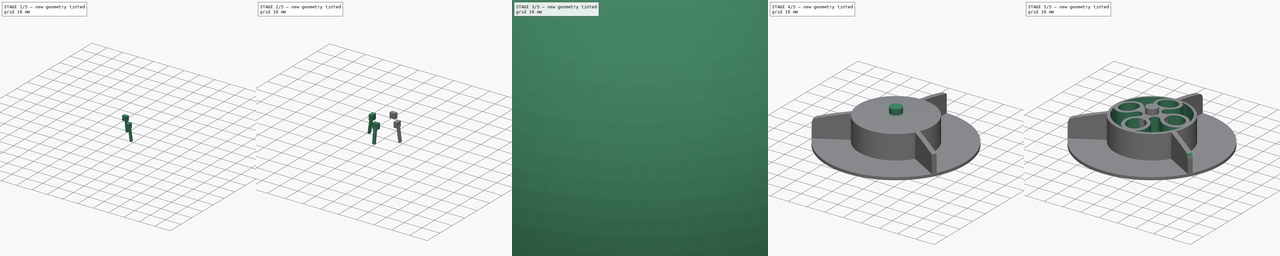
[diagram: build sequence overview — one tinted view per stage of 5, left to right]
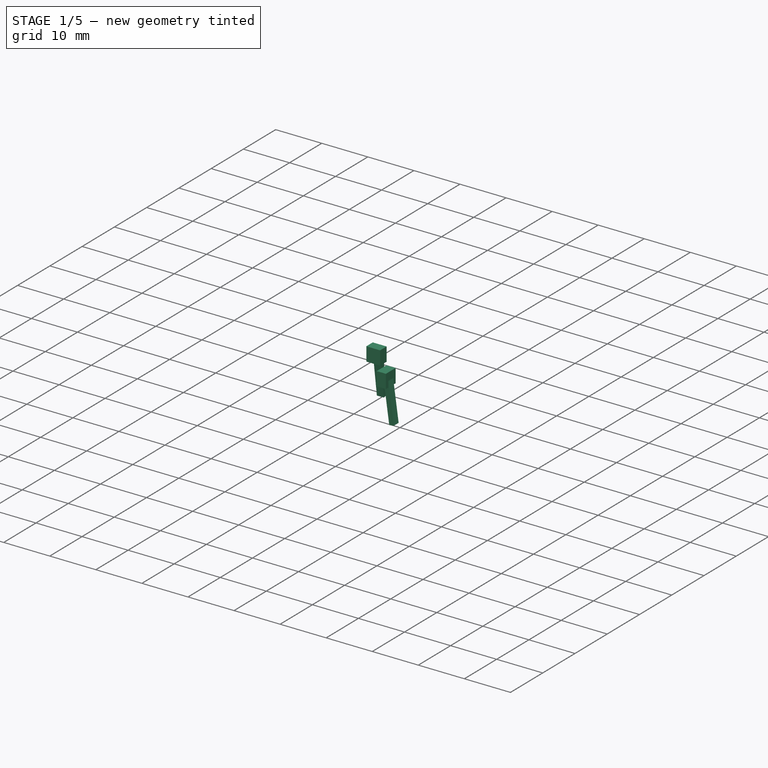
[diagram: stage 1 of 5 — iso view after this stage's code; geometry added in this stage tinted green]
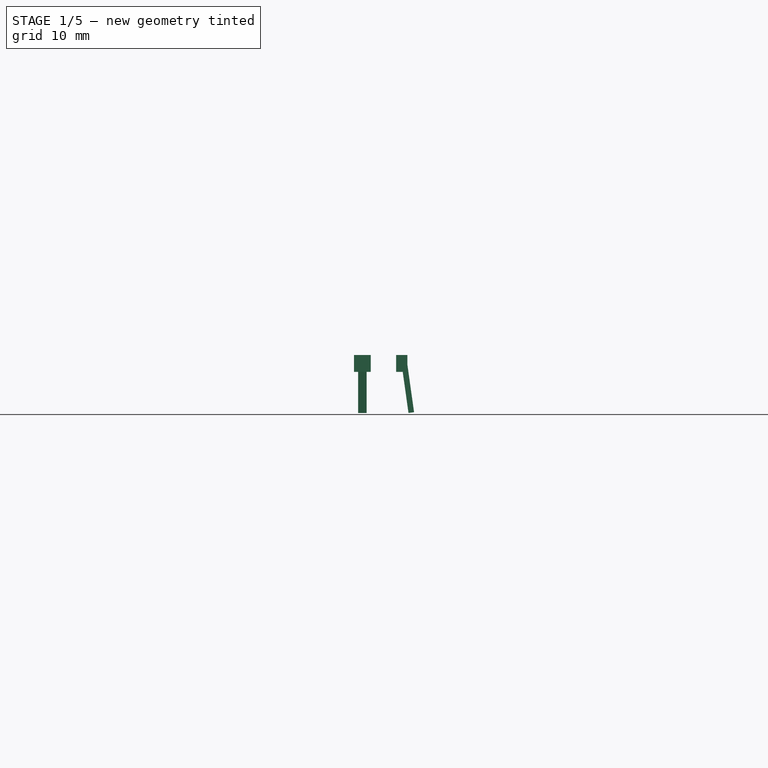
[diagram: stage 1 of 5 — front view after this stage's code; geometry added in this stage tinted green]
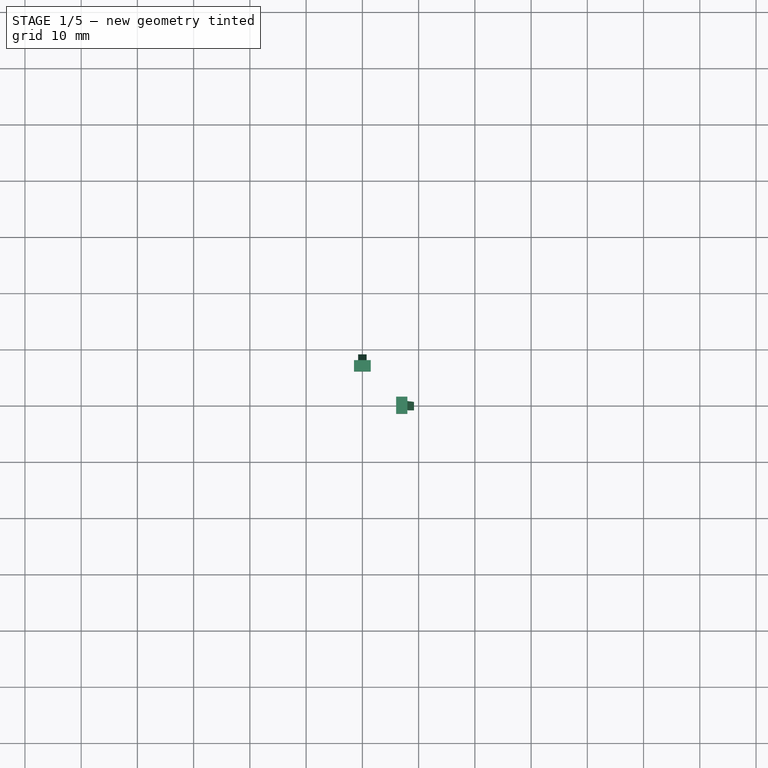
[diagram: stage 1 of 5 — top view after this stage's code; geometry added in this stage tinted green]
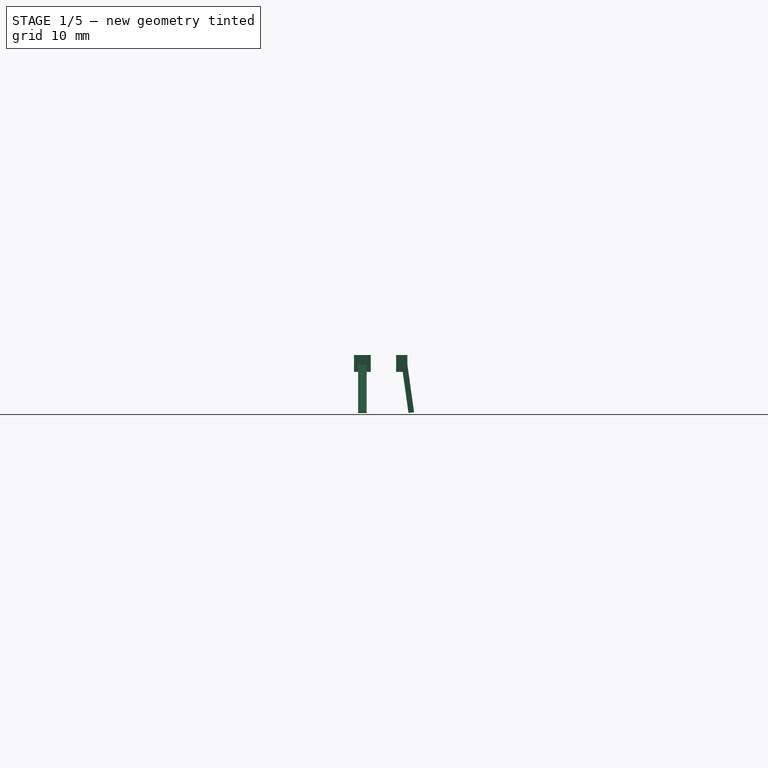
[diagram: stage 1 of 5 — right view after this stage's code; geometry added in this stage tinted green]
FCSTD DOCUMENT  (FreeCAD 0.14R2580 (Git))
Label: Disolver-Stirrer
License: CC-BY 3.0
LicenseURL: http://creativecommons.org/licenses/by/3.0/
objects: Part::Box×8, Sketcher::SketchObject×7, Part::MultiFuse×5, PartDesign::Pad×4, PartDesign::Pocket×3, PartDesign::Fillet×3, Part::Sphere×1, Part::MultiCommon×1
note: 39 computed .brp shape members not serialized (recipe doc carries the construction recipe); baked Part::Feature solids carry a one-line shape summary decoded from their .brp

FEATURE [Part::Box] Box001002  label="Clip004"
  Height = 10
  Length = 1.5
  Placement = pos=(-0.75,8.2,5.5) rot=(1,0,0;0.139626rad)
  Width = 1
FEATURE [Part::Box] Box001003
  Height = 3
  Length = 3
  Placement = pos=(-1.5,6,12.8) rot=(0,0,1;0rad)
  Width = 2
FEATURE [Part::Box] Box001004  label="Clip006"
  Height = 10
  Length = 1.5
  Placement = pos=(-0.75,8.2,5.5) rot=(1,0,0;0.139626rad)
  Width = 1
FEATURE [Part::Box] Box001005
  Height = 3
  Length = 3
  Placement = pos=(-1.5,6,12.8) rot=(0,0,1;0rad)
  Width = 2
FEATURE [Part::MultiFuse] Fusion003  label="Clip007"
  Placement = pos=(0,0,0) rot=(0,0,-1;1.5708rad)
  Shapes = -> [Box001005,Box001004]
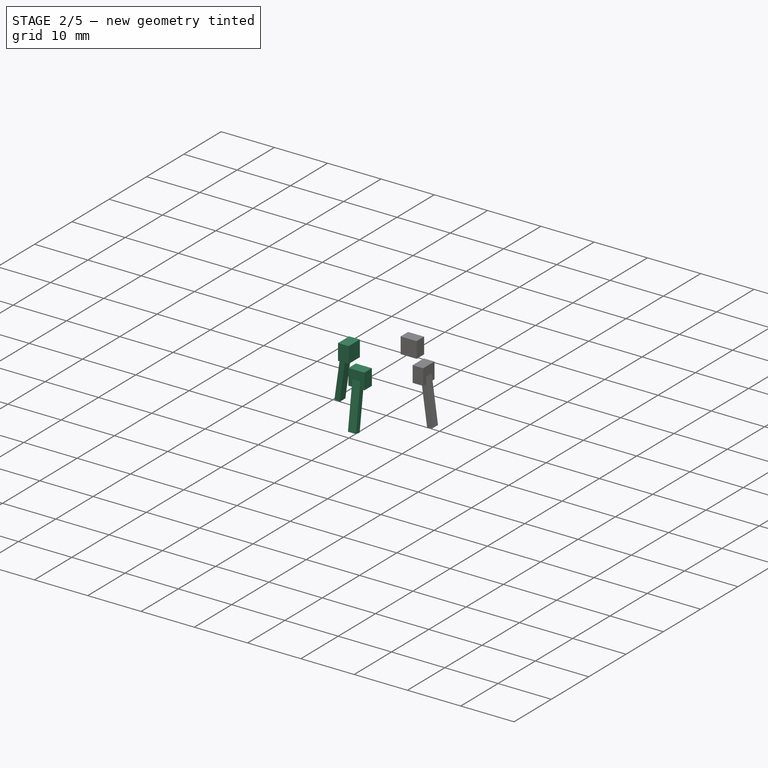
[diagram: stage 2 of 5 — iso view after this stage's code; geometry added in this stage tinted green]
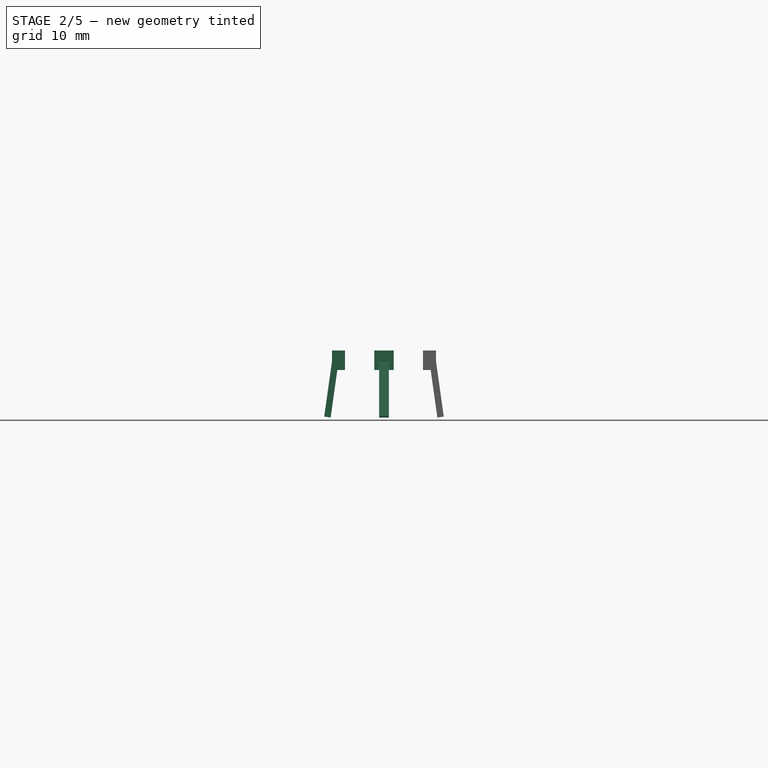
[diagram: stage 2 of 5 — front view after this stage's code; geometry added in this stage tinted green]
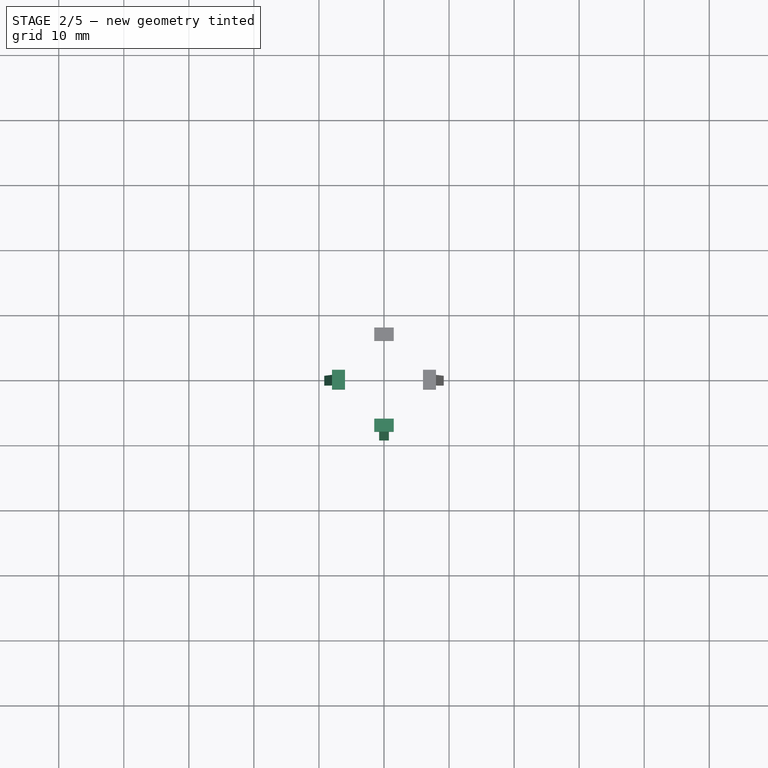
[diagram: stage 2 of 5 — top view after this stage's code; geometry added in this stage tinted green]
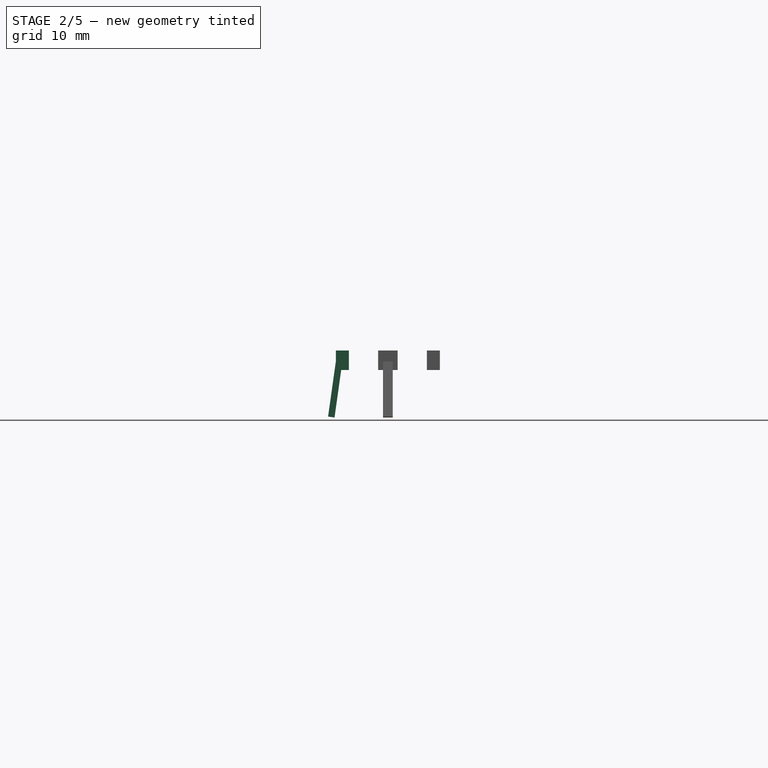
[diagram: stage 2 of 5 — right view after this stage's code; geometry added in this stage tinted green]
FEATURE [Part::Box] Box001
  Height = 3
  Length = 3
  Placement = pos=(-1.5,6,12.8) rot=(0,0,1;0rad)
  Width = 2
FEATURE [Part::Box] Box002  label="Clip002"
  Height = 10
  Length = 1.5
  Placement = pos=(-0.75,8.2,5.5) rot=(1,0,0;0.139626rad)
  Width = 1
FEATURE [Part::Box] Box001001
  Height = 3
  Length = 3
  Placement = pos=(-1.5,6,12.8) rot=(0,0,1;0rad)
  Width = 2
FEATURE [Part::MultiFuse] Fusion001  label="Clip003"
  Placement = pos=(0,0,0) rot=(0,0,1;1.5708rad)
  Shapes = -> [Box001001,Box002]
FEATURE [Part::MultiFuse] Fusion002  label="Clip005"
  Placement = pos=(0,0,0) rot=(0,0,1;3.14159rad)
  Shapes = -> [Box001003,Box001002]
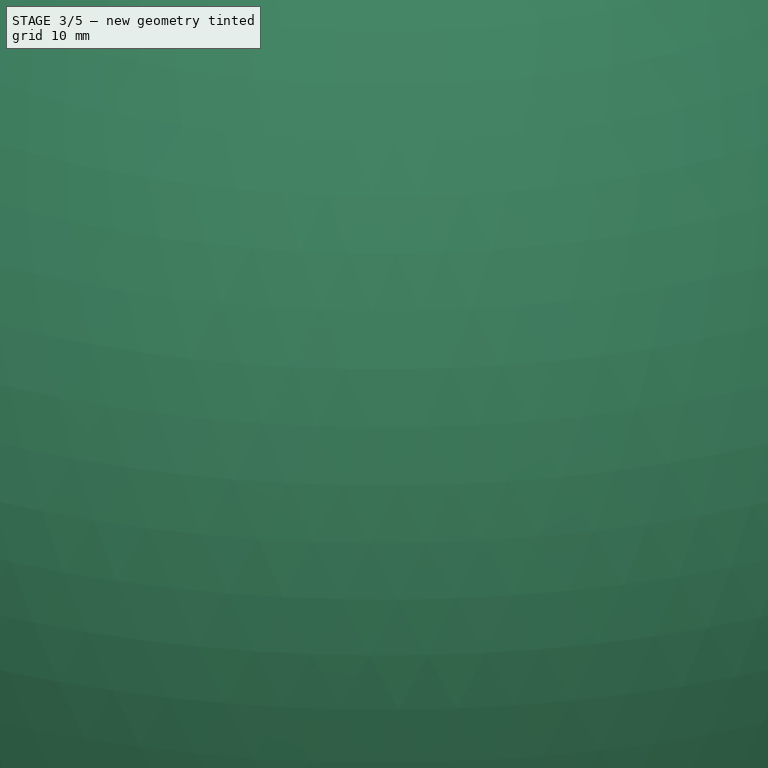
[diagram: stage 3 of 5 — iso view after this stage's code; geometry added in this stage tinted green]
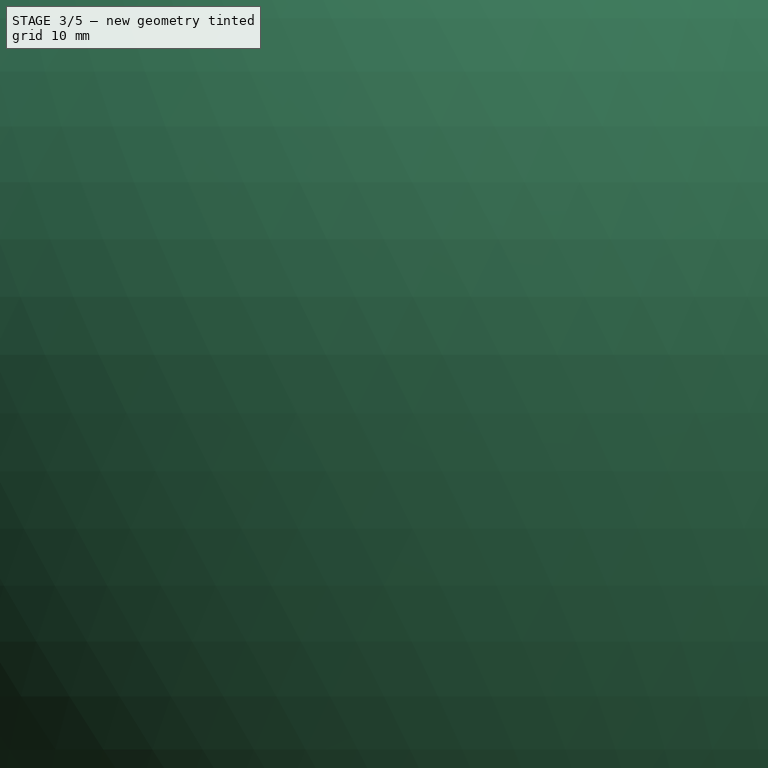
[diagram: stage 3 of 5 — front view after this stage's code; geometry added in this stage tinted green]
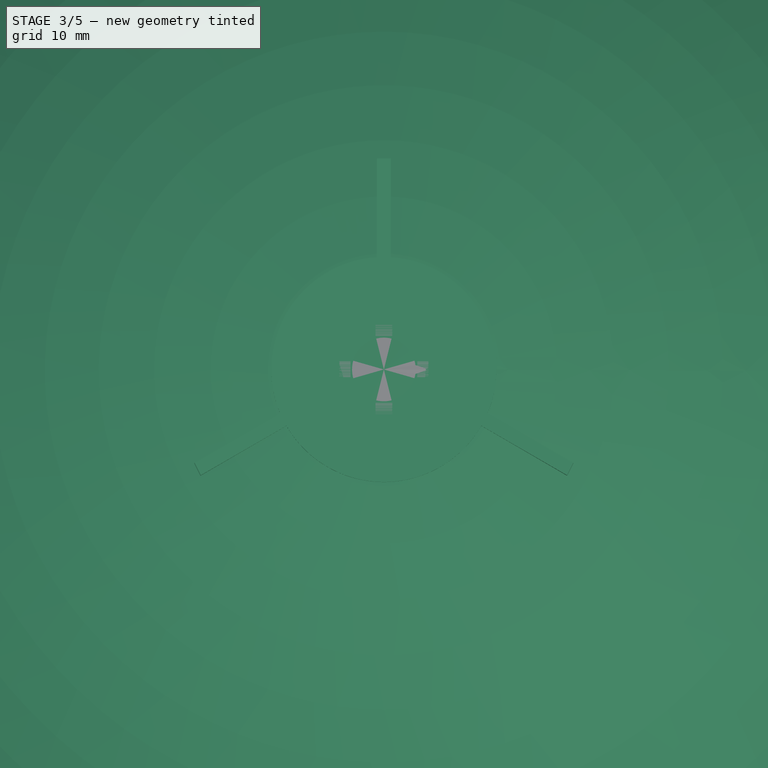
[diagram: stage 3 of 5 — top view after this stage's code; geometry added in this stage tinted green]
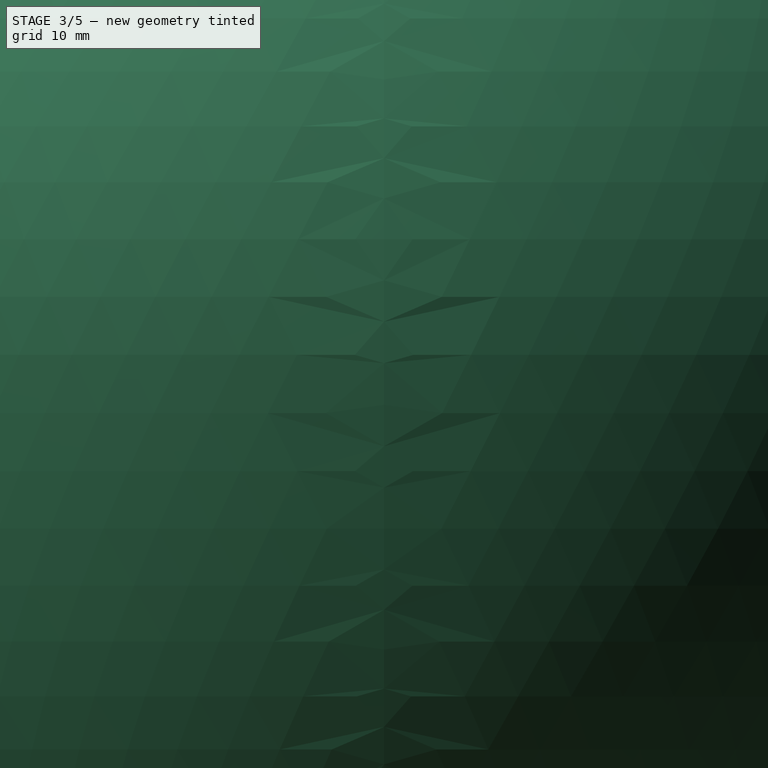
[diagram: stage 3 of 5 — right view after this stage's code; geometry added in this stage tinted green]
FEATURE [Sketcher::SketchObject] Sketch  label="Base"
  sketch-geometry (1):
    g0: Circle CenterX=0 CenterY=0 CenterZ=0 NormalX=0 NormalY=0 NormalZ=1 Radius=38
  constraints (2):
    c: Coincident(g0,g-1)
    c: Radius(g0) = 38
FEATURE [PartDesign::Pad] Pad  label="BasePlate"
  Length = 1.5
  Length2 = 100
  Sketch = -> Sketch
  Type = 0
FEATURE [Sketcher::SketchObject] Sketch001
  ExternalGeometry = -> [Pad]
  Placement = pos=(0,0,1.5) rot=(0,0,1;0rad)
  Support = -> Pad [Face3]
  sketch-geometry (12):
    g0: LineSegment StartX=-1.25 StartY=20.2114 StartZ=0 EndX=-1.25 EndY=37.9794 EndZ=0
    g1: LineSegment StartX=-1.25 StartY=37.9794 StartZ=0 EndX=1.25 EndY=37.9794 EndZ=0
    g2: LineSegment StartX=1.25 StartY=37.9794 StartZ=0 EndX=1.25 EndY=20.2114 EndZ=0
    g3: LineSegment StartX=18.651 StartY=-7.8869 StartZ=0 EndX=34.0856 EndY=-16.7981 EndZ=0
    g4: LineSegment StartX=34.0856 StartY=-16.7981 StartZ=0 EndX=32.9716 EndY=-19.0362 EndZ=0
    g5: LineSegment StartX=32.9716 StartY=-19.0362 StartZ=0 EndX=17.537 EndY=-10.125 EndZ=0
    g6: LineSegment StartX=-17.537 StartY=-10.125 StartZ=0 EndX=-32.9716 EndY=-19.0362 EndZ=0
    g7: LineSegment StartX=-32.9716 StartY=-19.0362 StartZ=0 EndX=-34.0856 EndY=-16.7981 EndZ=0
    g8: LineSegment StartX=-34.0856 StartY=-16.7981 StartZ=0 EndX=-18.651 EndY=-7.8869 EndZ=0
    g9: ArcOfCircle CenterX=0 CenterY=0 CenterZ=0 NormalX=0 NormalY=0 NormalZ=1 Radius=20.25 StartAngle=5.88312 EndAngle=7.79221
    g10: ArcOfCircle CenterX=0 CenterY=0 CenterZ=0 NormalX=0 NormalY=0 NormalZ=1 Radius=20.25 StartAngle=3.66519 EndAngle=5.75959
    g11: ArcOfCircle CenterX=0 CenterY=0 CenterZ=0 NormalX=0 NormalY=0 NormalZ=1 Radius=20.25 StartAngle=1.63256 EndAngle=3.54166
  constraints (36):
    c: Vertical(g0)
    c: Coincident(g0,g1)
    c: Horizontal(g1)
    c: Coincident(g1,g2)
    c: Vertical(g2)
    c: Coincident(g3,g4)
    c: Coincident(g4,g5)
    c: Coincident(g6,g7)
    c: Coincident(g7,g8)
    c: Coincident(g9,g-1)
    c: Coincident(g10,g-1)
    c: Coincident(g11,g-1)
    c: Coincident(g10,g6)
    c: Coincident(g10,g5)
    c: Coincident(g3,g9)
    c: Coincident(g9,g2)
    c: Coincident(g0,g11)
    c: Coincident(g8,g11)
    c: Equal(g10,g9)
    c: Equal(g9,g11)
    c: Equal(g1,g4)
    c: Equal(g4,g7)
    c: Distance(g1) = 2.5
    c: PointOnObject(g1,g-3)
    c: Symmetric(g2,g0,g-2)
    c: Parallel(g3,g5)
    c: Parallel(g6,g8)
    c: Equal(g3,g5)
    c: Equal(g6,g8)
    c: PointOnObject(g3,g-3)
    c: PointOnObject(g7,g-3)
    c: Perpendicular(g5,g10)
    c: Perpendicular(g6,g10)
    c: Radius(g9) = 20.25
    c: Angle(g3,g-2) = 2.0944
    c: Angle(g-2,g8) = 2.0944
FEATURE [PartDesign::Pad] Pad001  label="Paddles"
  Length = 14.3
  Length2 = 100
  Sketch = -> Sketch001
  Type = 0
FEATURE [Part::Sphere] Sphere
  Angle1 = -90
  Angle2 = 90
  Angle3 = 360
  Placement = pos=(0,0,-134) rot=(0,0,1;0rad)
  Radius = 150
FEATURE [Part::Box] Box  label="Clip"
  Height = 10
  Length = 1.5
  Placement = pos=(-0.75,8.2,5.5) rot=(1,0,0;0.139626rad)
  Width = 1
FEATURE [Part::MultiFuse] Fusion  label="Clip001"
  Shapes = -> [Box001,Box]
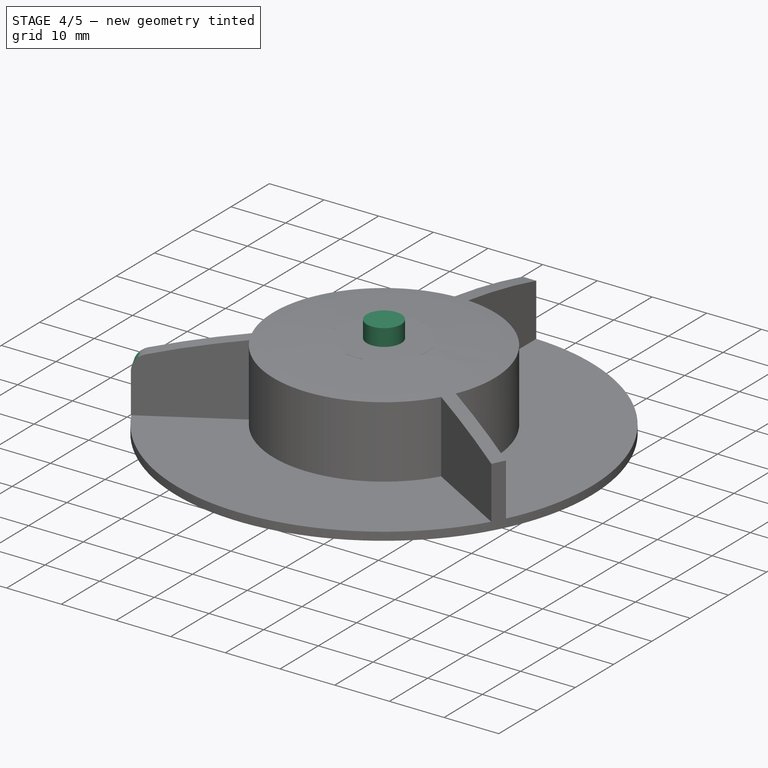
[diagram: stage 4 of 5 — iso view after this stage's code; geometry added in this stage tinted green]
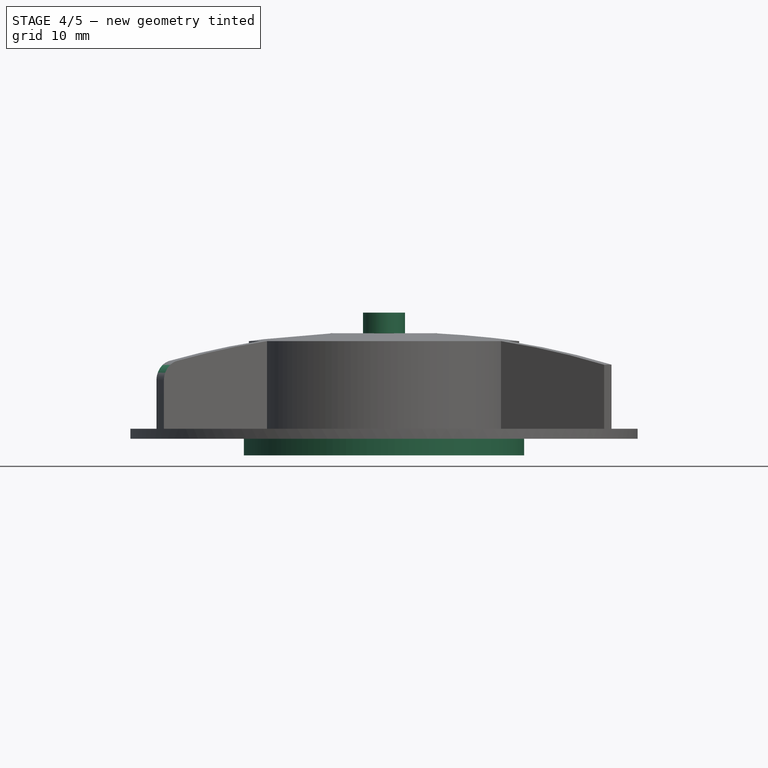
[diagram: stage 4 of 5 — front view after this stage's code; geometry added in this stage tinted green]
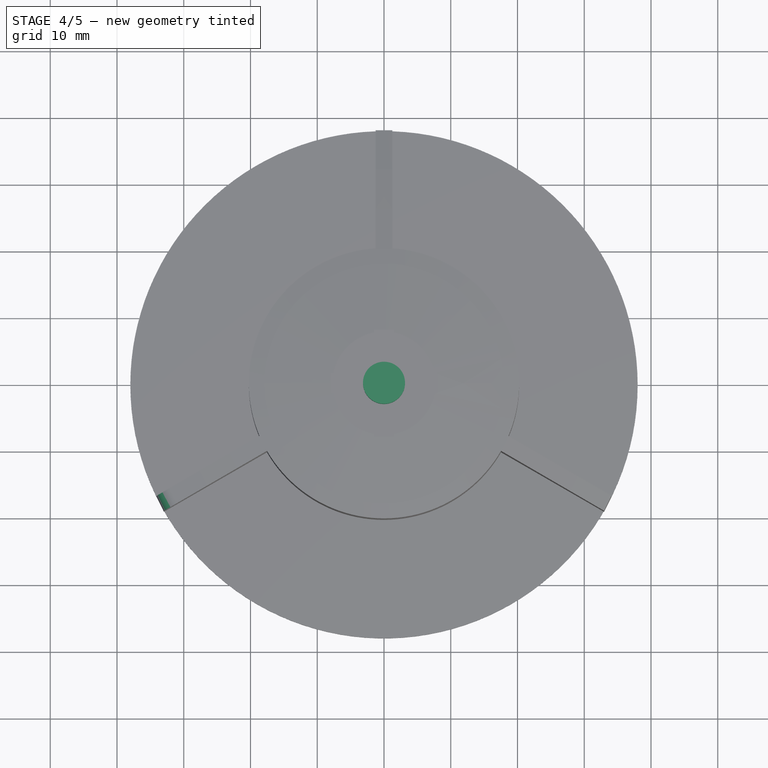
[diagram: stage 4 of 5 — top view after this stage's code; geometry added in this stage tinted green]
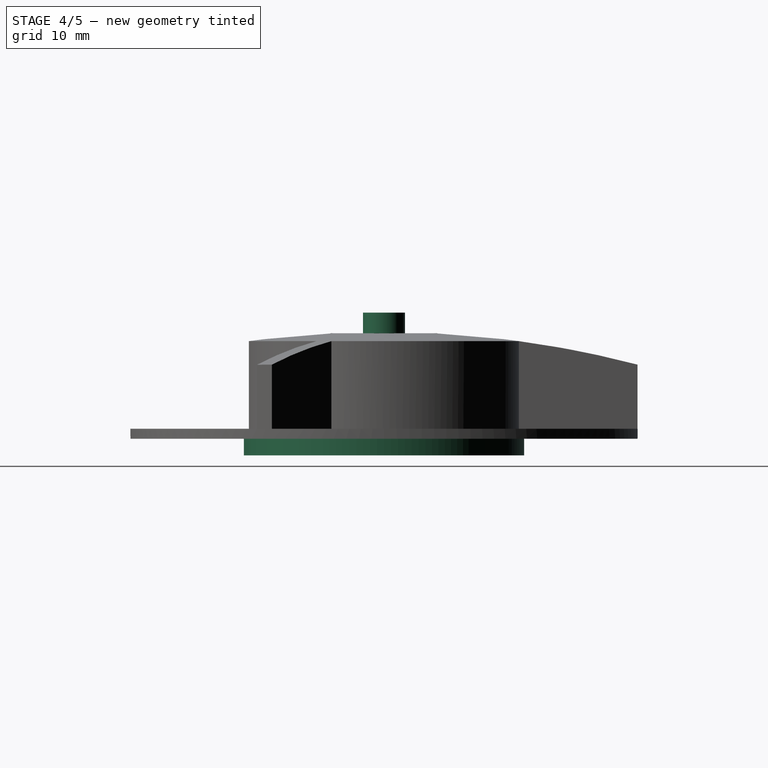
[diagram: stage 4 of 5 — right view after this stage's code; geometry added in this stage tinted green]
FEATURE [Part::MultiCommon] Common  label="CurveTop"
  Shapes = -> [Sphere,Pad001]
FEATURE [Sketcher::SketchObject] Sketch002
  Placement = pos=(0,0,15.8) rot=(0,0,1;0rad)
  Support = -> Common [Face24]
  sketch-geometry (1):
    g0: Circle CenterX=0 CenterY=0 CenterZ=0 NormalX=0 NormalY=0 NormalZ=1 Radius=3.15
  constraints (2):
    c: Coincident(g0,g-1)
    c: Radius(g0) = 3.15
FEATURE [PartDesign::Pad] Pad002  label="TopNub"
  Length = 3.1
  Length2 = 100
  Sketch = -> Sketch002
  Type = 0
FEATURE [Sketcher::SketchObject] Sketch003
  Placement = pos=(0,0,0) rot=(1,0,0;3.14159rad)
  Support = -> Pad002 [Face1]
  sketch-geometry (1):
    g0: Circle CenterX=0 CenterY=0 CenterZ=0 NormalX=0 NormalY=0 NormalZ=1 Radius=21
  constraints (2):
    c: Coincident(g0,g-1)
    c: Radius(g0) = 21
FEATURE [PartDesign::Pad] Pad003  label="BottomPlate"
  Length = 2.49
  Length2 = 100
  Sketch = -> Sketch003
  Type = 0
FEATURE [Sketcher::SketchObject] Sketch004
  Placement = pos=(0,0,-2.49) rot=(1,0,0;3.14159rad)
  Support = -> Pad003 [Face26]
  sketch-geometry (1):
    g0: Circle CenterX=0 CenterY=0 CenterZ=0 NormalX=0 NormalY=0 NormalZ=1 Radius=4
  constraints (2):
    c: Coincident(g0,g-1)
    c: Radius(g0) = 4
FEATURE [PartDesign::Pocket] Pocket  label="BottomHole"
  Length = 8.75
  Sketch = -> Sketch004
  Type = 0
FEATURE [PartDesign::Fillet] Fillet
  Base = -> Pocket [Edge46]
  Radius = 3
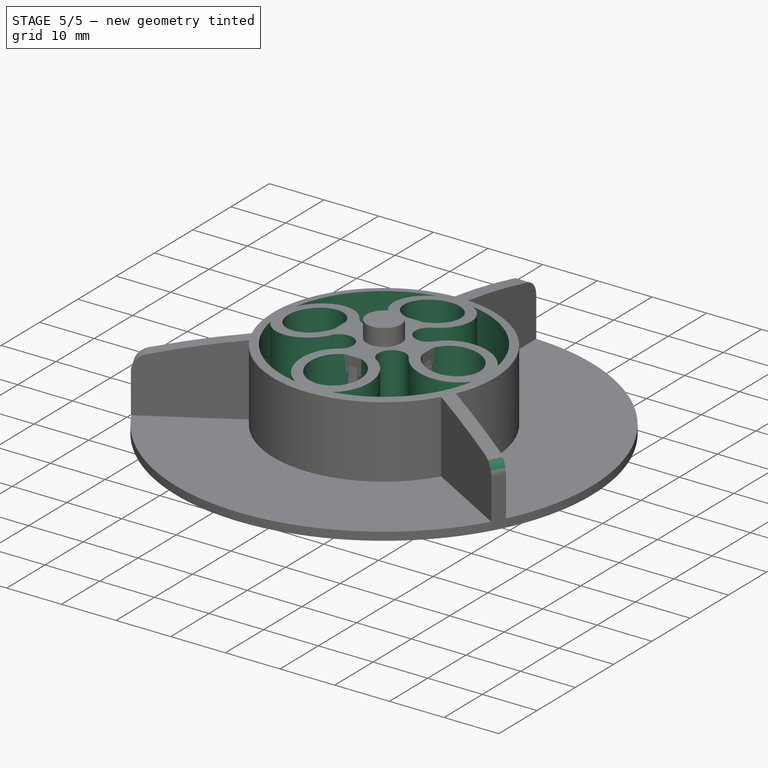
[diagram: stage 5 of 5 — iso view after this stage's code; geometry added in this stage tinted green]
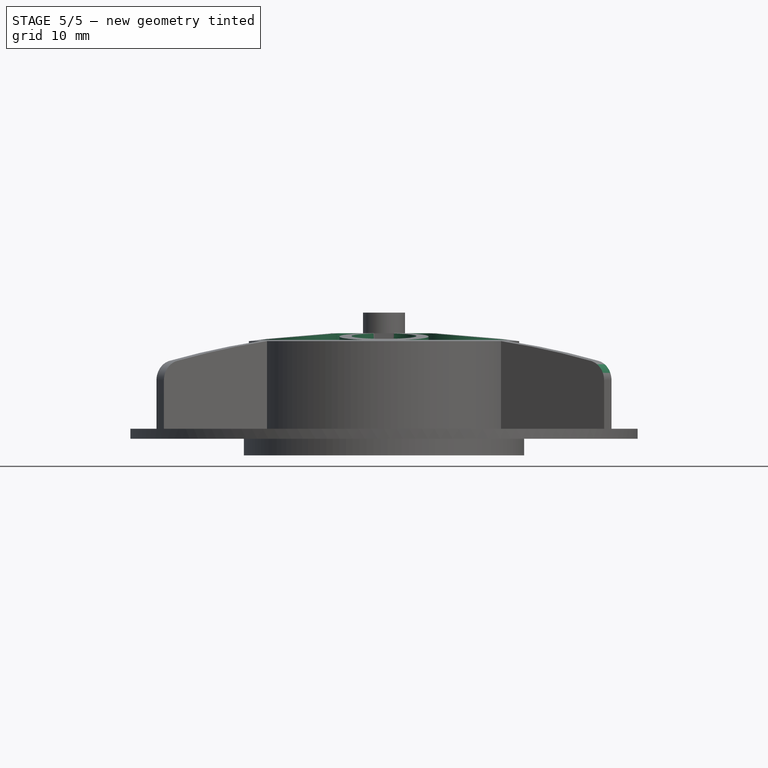
[diagram: stage 5 of 5 — front view after this stage's code; geometry added in this stage tinted green]
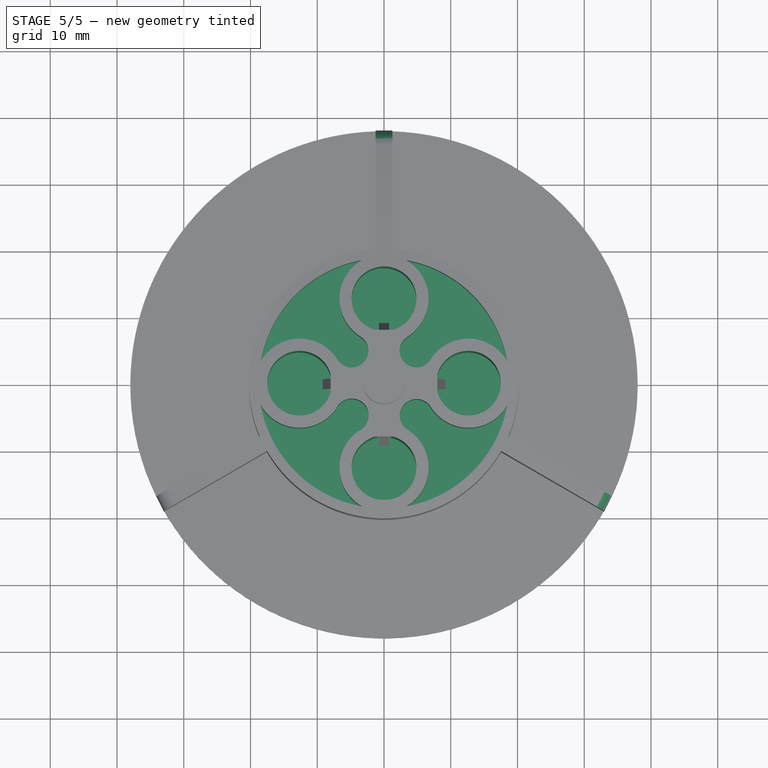
[diagram: stage 5 of 5 — top view after this stage's code; geometry added in this stage tinted green]
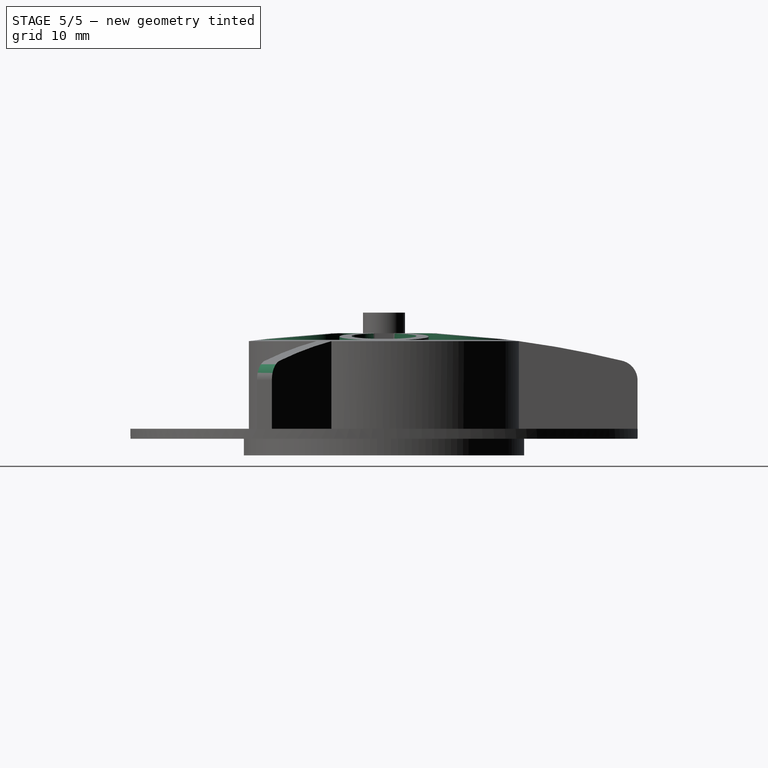
[diagram: stage 5 of 5 — right view after this stage's code; geometry added in this stage tinted green]
FEATURE [PartDesign::Fillet] Fillet001
  Base = -> Fillet [Edge18]
  Radius = 3
FEATURE [PartDesign::Fillet] Fillet002
  Base = -> Fillet001 [Edge14]
  Radius = 3
FEATURE [Sketcher::SketchObject] Sketch005
  Placement = pos=(0,0,15.8) rot=(0,0,1;0rad)
  Support = -> Fillet002 [Face10]
  sketch-geometry (16):
    g0: ArcOfCircle CenterX=0 CenterY=12.65 CenterZ=0 NormalX=0 NormalY=0 NormalZ=1 Radius=4.85 StartAngle=4.92006 EndAngle=10.7879
    g1: LineSegment StartX=-1 StartY=7.90421 StartZ=0 EndX=-1 EndY=6.40421 EndZ=0
    g2: LineSegment StartX=1 StartY=7.90421 StartZ=0 EndX=1 EndY=6.40421 EndZ=0
    g3: LineSegment StartX=-1 StartY=6.40421 StartZ=0 EndX=1 EndY=6.40421 EndZ=0
    g4: ArcOfCircle CenterX=0 CenterY=-12.65 CenterZ=0 NormalX=0 NormalY=0 NormalZ=1 Radius=4.85 StartAngle=1.77847 EndAngle=7.64631
    g5: LineSegment StartX=1 StartY=-7.90421 StartZ=0 EndX=1 EndY=-6.40421 EndZ=0
    g6: LineSegment StartX=1 StartY=-6.40421 StartZ=0 EndX=-1 EndY=-6.40421 EndZ=0
    g7: LineSegment StartX=-1 StartY=-6.40421 StartZ=0 EndX=-1 EndY=-7.90421 EndZ=0
    g8: ArcOfCircle CenterX=12.65 CenterY=0 CenterZ=0 NormalX=0 NormalY=0 NormalZ=1 Radius=4.85 StartAngle=3.34927 EndAngle=9.2171
    g9: LineSegment StartX=7.90421 StartY=1 StartZ=0 EndX=6.40421 EndY=1 EndZ=0
    g10: LineSegment StartX=6.40421 StartY=1 StartZ=0 EndX=6.40421 EndY=-1 EndZ=0
    g11: LineSegment StartX=6.40421 StartY=-1 StartZ=0 EndX=7.90421 EndY=-1 EndZ=0
    g12: ArcOfCircle CenterX=-12.65 CenterY=0 CenterZ=0 NormalX=0 NormalY=0 NormalZ=1 Radius=4.85 StartAngle=0.207675 EndAngle=6.07551
    g13: LineSegment StartX=-7.90421 StartY=1 StartZ=0 EndX=-6.40421 EndY=1 EndZ=0
    g14: LineSegment StartX=-6.40421 StartY=1 StartZ=0 EndX=-6.40421 EndY=-1 EndZ=0
    g15: LineSegment StartX=-6.40421 StartY=-1 StartZ=0 EndX=-7.90421 EndY=-1 EndZ=0
  constraints (52):
    c: PointOnObject(g0,g-2)
    c: Coincident(g1,g0)
    c: Vertical(g1)
    c: Coincident(g2,g0)
    c: Vertical(g2)
    c: Coincident(g3,g1)
    c: Horizontal(g3)
    c: Coincident(g2,g3)
    c: Radius(g0) = 4.85
    c: Symmetric(g2,g1,g-2)
    c: Distance(g3) = 2
    c: Distance(g2) = 1.5
    c: PointOnObject(g4,g-2)
    c: Coincident(g5,g6)
    c: Coincident(g6,g7)
    c: Coincident(g4,g7)
    c: Coincident(g4,g5)
    c: Vertical(g5)
    c: Vertical(g7)
    c: Horizontal(g6)
    c: Symmetric(g5,g6,g-2)
    c: Equal(g6,g3)
    c: Equal(g2,g5)
    c: Equal(g0,g4)
    c: Symmetric(g4,g0,g-1)
    c: DistanceY(g4,g0) = 25.3
    c: PointOnObject(g8,g-1)
    c: Coincident(g9,g10)
    c: Vertical(g10)
    c: Coincident(g10,g11)
    c: Horizontal(g11)
    c: Horizontal(g9)
    c: Coincident(g9,g8)
    c: Coincident(g8,g11)
    c: Symmetric(g10,g9,g-1)
    c: Equal(g10,g6)
    c: Equal(g11,g5)
    c: Equal(g8,g0)
    c: PointOnObject(g12,g-1)
    c: Coincident(g13,g14)
    c: Coincident(g14,g15)
    c: Horizontal(g15)
    c: Horizontal(g13)
    c: Coincident(g13,g12)
    c: Coincident(g15,g12)
    c: Vertical(g14)
    c: Equal(g14,g3)
    c: Equal(g15,g11)
    c: Symmetric(g14,g13,g-1)
    c: Equal(g12,g0)
    c: Symmetric(g12,g8,g-2)
    c: DistanceX(g12,g8) = 25.3
FEATURE [PartDesign::Pocket] Pocket001  label="MagHoles"
  Length = 17
  Sketch = -> Sketch005
  Type = 0
FEATURE [Part::MultiFuse] Fusion004
  Shapes = -> [Fusion003,Fusion001,Pocket001,Fusion,Fusion002]
FEATURE [Sketcher::SketchObject] Sketch006
  ExternalGeometry = -> [Fusion004]
  Placement = pos=(0,0,15.8) rot=(0,0,1;0rad)
  Support = -> Fusion004 [Face17]
  sketch-geometry (16):
    g0: ArcOfCircle CenterX=0 CenterY=0 CenterZ=0 NormalX=0 NormalY=0 NormalZ=1 Radius=18.7441 StartAngle=1.74847 EndAngle=2.96392
    g1: ArcOfCircle CenterX=0 CenterY=12.65 CenterZ=0 NormalX=0 NormalY=0 NormalZ=1 Radius=6.67853 StartAngle=2.08982 EndAngle=4.15657
    g2: ArcOfCircle CenterX=-12.65 CenterY=0 CenterZ=0 NormalX=0 NormalY=0 NormalZ=1 Radius=6.67853 StartAngle=0.555813 EndAngle=2.62257
    g3: ArcOfCircle CenterX=-4.84683 CenterY=4.84683 CenterZ=0 NormalX=0 NormalY=0 NormalZ=1 Radius=2.50739 StartAngle=3.69741 EndAngle=7.29816
    g4: ArcOfCircle CenterX=4.84683 CenterY=4.84683 CenterZ=0 NormalX=0 NormalY=0 NormalZ=1 Radius=2.50739 StartAngle=2.12661 EndAngle=5.72736
    g5: ArcOfCircle CenterX=12.65 CenterY=0 CenterZ=0 NormalX=0 NormalY=0 NormalZ=1 Radius=6.67853 StartAngle=0.519028 EndAngle=2.58578
    g6: ArcOfCircle CenterX=0 CenterY=12.65 CenterZ=0 NormalX=0 NormalY=0 NormalZ=1 Radius=6.67853 StartAngle=5.2682 EndAngle=7.33495
    g7: ArcOfCircle CenterX=0 CenterY=0 CenterZ=0 NormalX=0 NormalY=0 NormalZ=1 Radius=18.7441 StartAngle=0.177672 EndAngle=1.39312
    g8: ArcOfCircle CenterX=0 CenterY=0 CenterZ=0 NormalX=0 NormalY=0 NormalZ=1 Radius=18.7441 StartAngle=4.89006 EndAngle=6.10551
    g9: ArcOfCircle CenterX=12.65 CenterY=0 CenterZ=0 NormalX=0 NormalY=0 NormalZ=1 Radius=6.67853 StartAngle=3.70195 EndAngle=5.76416
    g10: ArcOfCircle CenterX=0 CenterY=-12.65 CenterZ=0 NormalX=0 NormalY=0 NormalZ=1 Radius=6.67853 StartAngle=5.23142 EndAngle=7.33277
    g11: ArcOfCircle CenterX=4.86893 CenterY=-4.88223 CenterZ=0 NormalX=0 NormalY=0 NormalZ=1 Radius=2.50739 StartAngle=0.560359 EndAngle=4.04929
    g12: ArcOfCircle CenterX=0 CenterY=0 CenterZ=0 NormalX=0 NormalY=0 NormalZ=1 Radius=18.7441 StartAngle=3.31908 EndAngle=4.5349
    g13: ArcOfCircle CenterX=-12.65 CenterY=0 CenterZ=0 NormalX=0 NormalY=0 NormalZ=1 Radius=6.67737 StartAngle=3.66013 EndAngle=5.66908
    g14: ArcOfCircle CenterX=0 CenterY=-12.65 CenterZ=0 NormalX=0 NormalY=0 NormalZ=1 Radius=6.67737 StartAngle=2.1849 EndAngle=4.19385
    g15: ArcOfCircle CenterX=-4.84683 CenterY=-4.84683 CenterZ=0 NormalX=0 NormalY=0 NormalZ=1 Radius=2.54975 StartAngle=5.11504 EndAngle=9.02212
  constraints (47):
    c: Coincident(g0,g-1)
    c: PointOnObject(g1,g-2)
    c: Coincident(g1,g0)
    c: Coincident(g2,g0)
    c: PointOnObject(g2,g-1)
    c: Equal(g2,g1)
    c: Coincident(g3,g1)
    c: Coincident(g3,g2)
    c: Tangent(g3,g2)
    c: Tangent(g3,g1)
    c: Equal(g4,g3)
    c: Symmetric(g4,g3,g-2)
    c: Coincident(g4,g5)
    c: Equal(g5,g2)
    c: Symmetric(g2,g5,g-2)
    c: DistanceX(g2,g5) = 25.3
    c: Coincident(g6,g1)
    c: Coincident(g6,g4)
    c: Tangent(g6,g4)
    c: Coincident(g7,g-1)
    c: Coincident(g5,g7)
    c: Coincident(g7,g6)
    c: Equal(g7,g0)
    c: Coincident(g8,g-1)
    c: Coincident(g9,g5)
    c: Coincident(g8,g9)
    c: PointOnObject(g10,g-2)
    c: Coincident(g8,g10)
    c: Symmetric(g10,g1,g-1)
    c: DistanceY(g10,g1) = 25.3
    c: Equal(g9,g1)
    c: Equal(g8,g7)
    c: Coincident(g11,g10)
    c: Coincident(g11,g9)
    c: Equal(g10,g2)
    c: Equal(g11,g4)
    c: Tangent(g9,g11)
    c: Coincident(g12,g-1)
    c: Coincident(g13,g2)
    c: Coincident(g13,g12)
    c: Coincident(g14,g10)
    c: Coincident(g14,g12)
    c: Equal(g14,g13)
    c: Coincident(g15,g13)
    c: Coincident(g14,g15)
    c: Equal(g12,g0)
    c: Symmetric(g15,g3,g-1)
FEATURE [PartDesign::Pocket] Pocket002
  Length = 8
  Sketch = -> Sketch006
  Type = 0
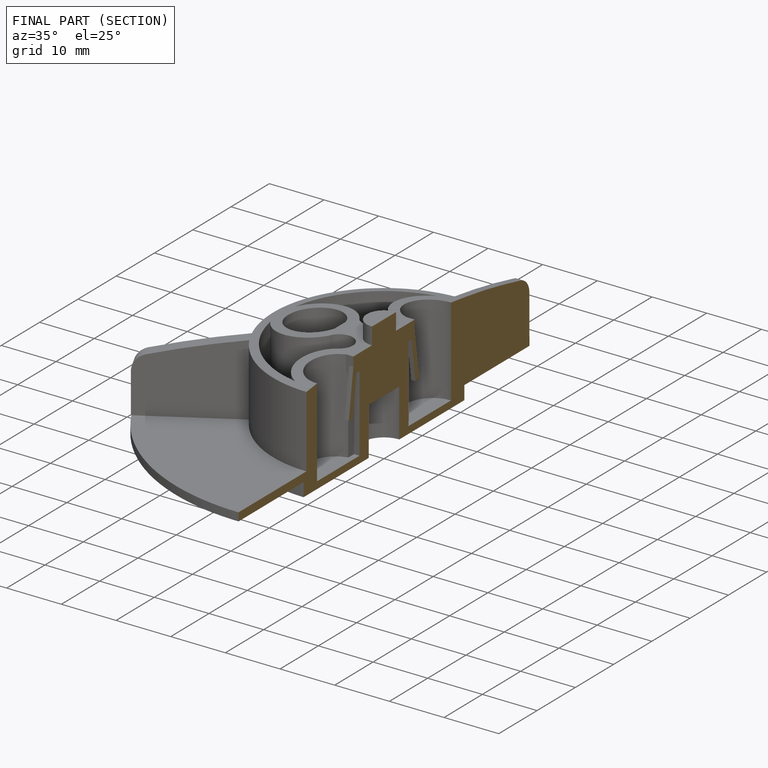
[diagram: finished part — half-section view (interior)]
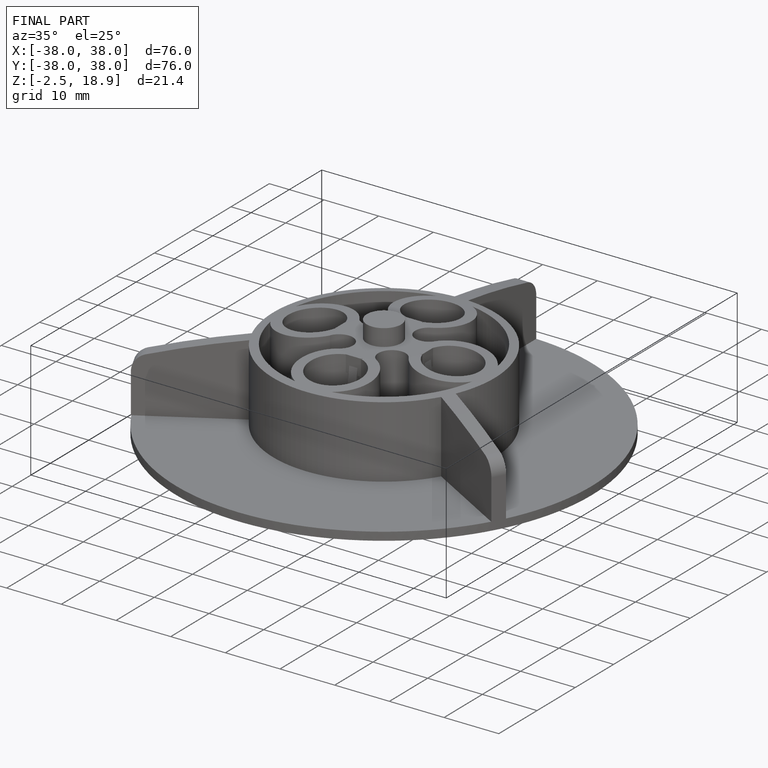
[diagram: finished part — iso view with bounding-box wireframe]
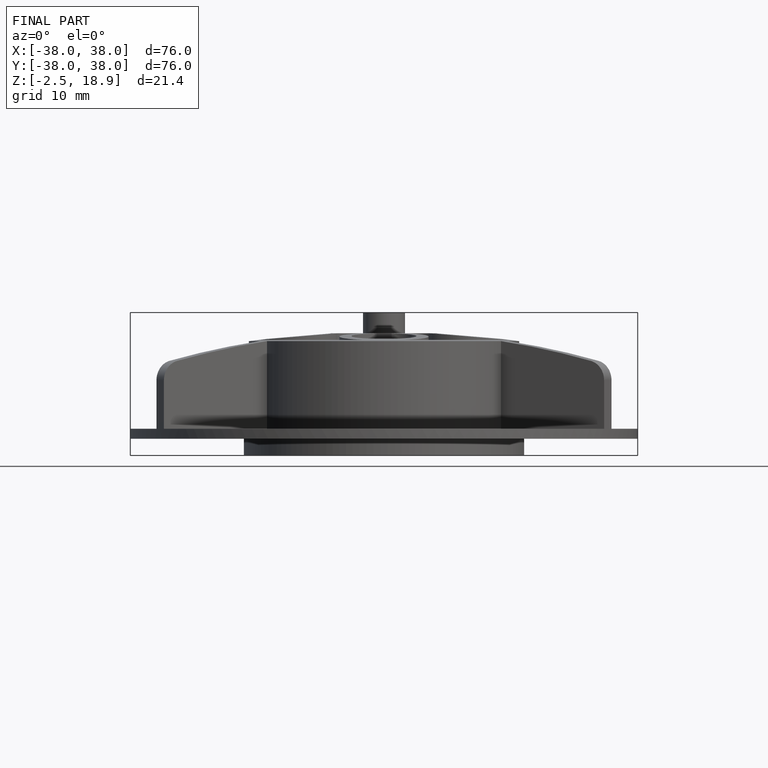
[diagram: finished part — front view with bounding-box wireframe]
